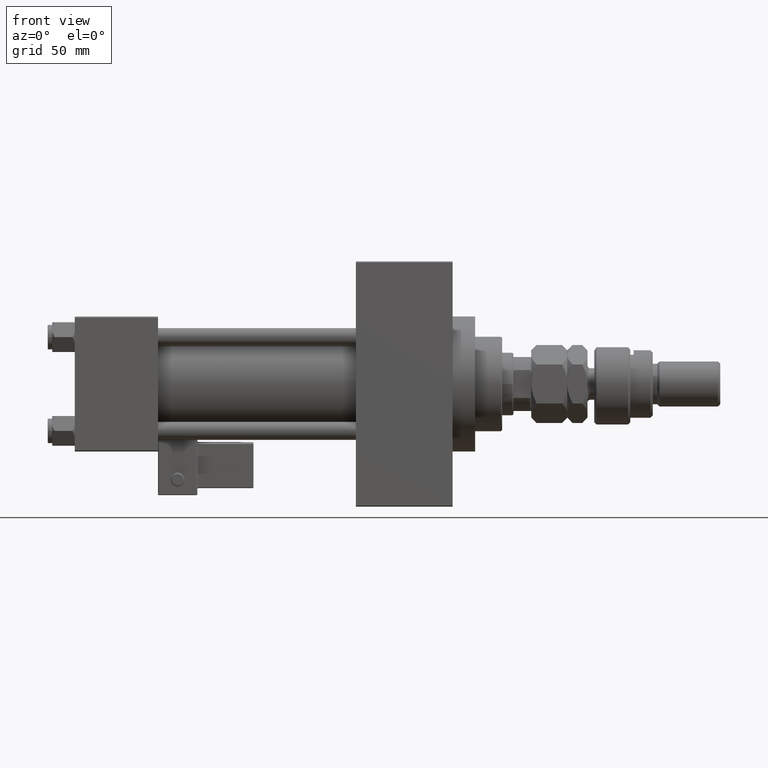
[diagram: clean part render]
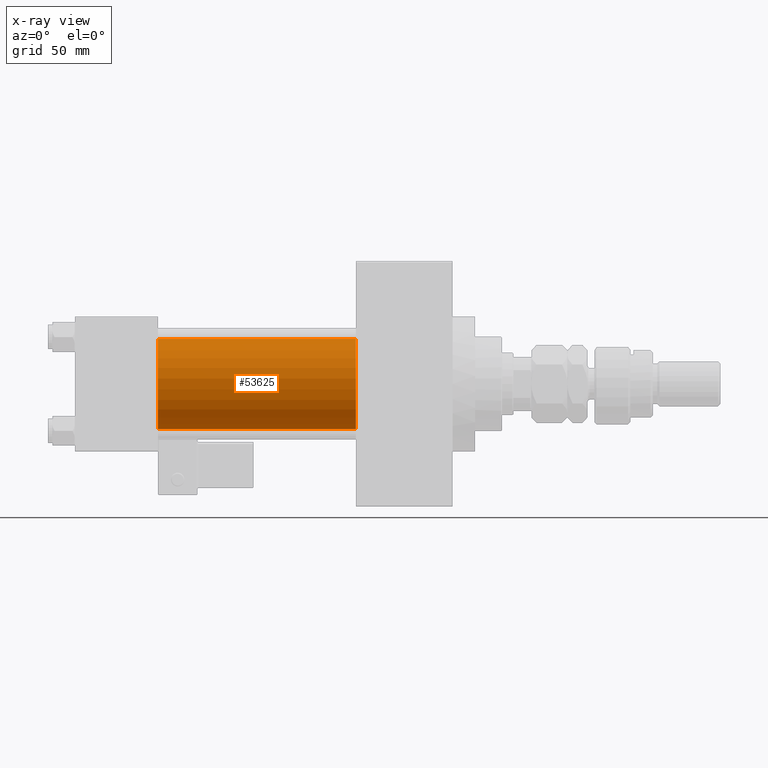
[diagram: x-ray — body ghosted, one internal face saturated and labeled with its STEP entity id]
A machine part, front view, then the same camera in x-ray: the body is ghosted and one INTERNAL B-rep face — a face not visible from any outside direction — is saturated and labeled: STEP entity #53625.
In plain terms, the highlighted cylindrical surface (partial cylindrical patch) has radius 20 mm, axis along (-1, -0, -0).
Its self-contained STEP definition (entity closure, byte-faithful):
#1266 = CARTESIAN_POINT ( 'NONE',  ( 125.0000000000000000, -1.527916156705042519E-16, -20.00000000000000000 ) ) ;
#2496 = CARTESIAN_POINT ( 'NONE',  ( 37.00000000000000000, -2.602085213965210642E-15, 20.00000000000000000 ) ) ;
#3680 = AXIS2_PLACEMENT_3D ( 'NONE', #41251, #45126, #20555 ) ;
#6949 = DIRECTION ( 'NONE',  ( 0.000000000000000000, 0.000000000000000000, -1.000000000000000000 ) ) ;
#8208 = DIRECTION ( 'NONE',  ( -1.000000000000000000, -0.000000000000000000, -0.000000000000000000 ) ) ;
#8299 = EDGE_CURVE ( 'NONE', #26223, #30004, #35849, .T. ) ;
#11631 = CARTESIAN_POINT ( 'NONE',  ( 125.0000000000000000, -2.602085213965210642E-15, 0.000000000000000000 ) ) ;
#14777 = LINE ( 'NONE', #1266, #39997 ) ;
#17339 = DIRECTION ( 'NONE',  ( 0.000000000000000000, 0.000000000000000000, 1.000000000000000000 ) ) ;
#20555 = DIRECTION ( 'NONE',  ( 0.000000000000000000, 0.000000000000000000, -1.000000000000000000 ) ) ;
#20649 = ORIENTED_EDGE ( 'NONE', *, *, #8299, .F. ) ;
#20744 = CARTESIAN_POINT ( 'NONE',  ( 125.0000000000000000, -2.602085213965210642E-15, 20.00000000000000000 ) ) ;
#21157 = CIRCLE ( 'NONE', #53640, 20.00000000000000000 ) ;
#23824 = DIRECTION ( 'NONE',  ( 1.000000000000000000, 0.000000000000000000, 0.000000000000000000 ) ) ;
#24261 = CARTESIAN_POINT ( 'NONE',  ( 37.00000000000000000, -1.527916156705042519E-16, -20.00000000000000000 ) ) ;
#25571 = VECTOR ( 'NONE', #48561, 1000.000000000000000 ) ;
#26223 = VERTEX_POINT ( 'NONE', #20744 ) ;
#28314 = EDGE_LOOP ( 'NONE', ( #52493, #33541, #52516, #20649 ) ) ;
#30004 = VERTEX_POINT ( 'NONE', #2496 ) ;
#31183 = CARTESIAN_POINT ( 'NONE',  ( 125.0000000000000000, -2.602085213965210642E-15, 20.00000000000000000 ) ) ;
#31742 = CARTESIAN_POINT ( 'NONE',  ( 125.0000000000000000, -1.527916156705042519E-16, -20.00000000000000000 ) ) ;
#32372 = VERTEX_POINT ( 'NONE', #24261 ) ;
#33541 = ORIENTED_EDGE ( 'NONE', *, *, #54508, .T. ) ;
#33624 = FACE_OUTER_BOUND ( 'NONE', #28314, .T. ) ;
#35849 = LINE ( 'NONE', #31183, #25571 ) ;
#36294 = CIRCLE ( 'NONE', #3680, 20.00000000000000000 ) ;
#37502 = CYLINDRICAL_SURFACE ( 'NONE', #44376, 20.00000000000000000 ) ;
#39918 = DIRECTION ( 'NONE',  ( -1.000000000000000000, -0.000000000000000000, -0.000000000000000000 ) ) ;
#39997 = VECTOR ( 'NONE', #39918, 1000.000000000000000 ) ;
#41251 = CARTESIAN_POINT ( 'NONE',  ( 37.00000000000000000, -2.602085213965210642E-15, 0.000000000000000000 ) ) ;
#41798 = EDGE_CURVE ( 'NONE', #26223, #50104, #21157, .T. ) ;
#44376 = AXIS2_PLACEMENT_3D ( 'NONE', #54343, #8208, #17339 ) ;
#45126 = DIRECTION ( 'NONE',  ( 1.000000000000000000, 0.000000000000000000, 0.000000000000000000 ) ) ;
#48561 = DIRECTION ( 'NONE',  ( -1.000000000000000000, -0.000000000000000000, -0.000000000000000000 ) ) ;
#48710 = EDGE_CURVE ( 'NONE', #30004, #32372, #36294, .T. ) ;
#50104 = VERTEX_POINT ( 'NONE', #31742 ) ;
#52493 = ORIENTED_EDGE ( 'NONE', *, *, #41798, .T. ) ;
#52516 = ORIENTED_EDGE ( 'NONE', *, *, #48710, .F. ) ;
#53625 = ADVANCED_FACE ( 'NONE', ( #33624 ), #37502, .F. ) ;
#53640 = AXIS2_PLACEMENT_3D ( 'NONE', #11631, #23824, #6949 ) ;
#54343 = CARTESIAN_POINT ( 'NONE',  ( 125.0000000000000000, -2.602085213965210642E-15, 0.000000000000000000 ) ) ;
#54508 = EDGE_CURVE ( 'NONE', #50104, #32372, #14777, .T. ) ;